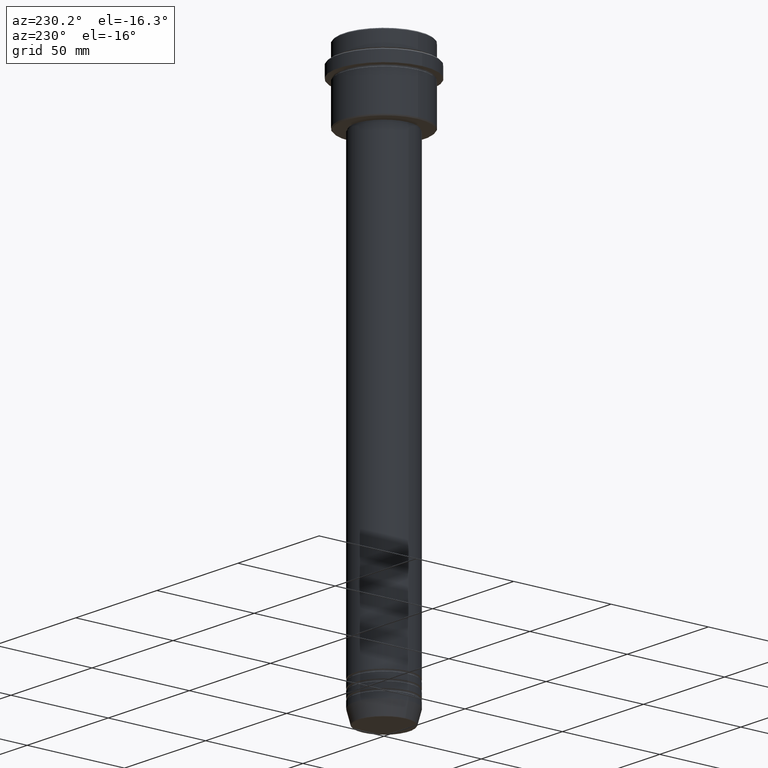
[diagram: clean part render]
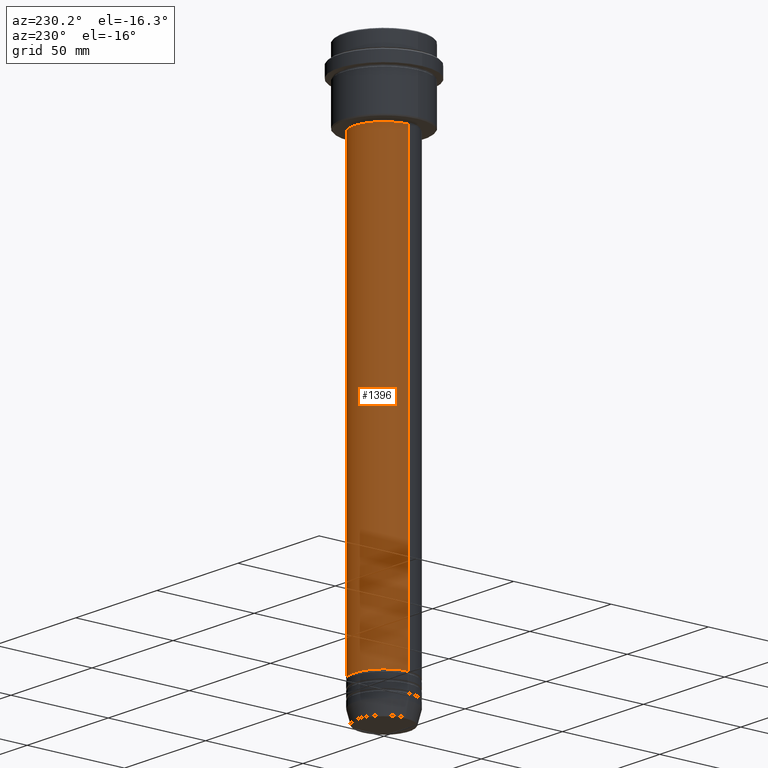
[diagram: same view with one face highlighted and labeled with its STEP entity id]
A machine part, auxiliary view. The second image highlights one B-rep face of the part: STEP entity #1396.
In plain terms, the highlighted cylindrical surface (partial cylindrical patch) has radius 15 mm, axis along (-0, -0, 1).
Its self-contained STEP definition (entity closure, byte-faithful):
#79 = AXIS2_PLACEMENT_3D ( 'NONE', #455, #342, #232 ) ;
#86 = VERTEX_POINT ( 'NONE', #430 ) ;
#97 = AXIS2_PLACEMENT_3D ( 'NONE', #731, #1404, #1165 ) ;
#114 = VECTOR ( 'NONE', #1054, 1000.000000000000000 ) ;
#196 = EDGE_CURVE ( 'NONE', #558, #386, #863, .T. ) ;
#212 = EDGE_CURVE ( 'NONE', #558, #86, #968, .T. ) ;
#232 = DIRECTION ( 'NONE',  ( 1.000000000000000000, 0.000000000000000000, 0.000000000000000000 ) ) ;
#256 = ORIENTED_EDGE ( 'NONE', *, *, #212, .F. ) ;
#280 = CIRCLE ( 'NONE', #79, 15.00000000000000000 ) ;
#342 = DIRECTION ( 'NONE',  ( -0.000000000000000000, -0.000000000000000000, 1.000000000000000000 ) ) ;
#372 = CARTESIAN_POINT ( 'NONE',  ( -15.00000000000000000, 1.836970198721029589E-15, -37.00000000000008527 ) ) ;
#386 = VERTEX_POINT ( 'NONE', #987 ) ;
#414 = CARTESIAN_POINT ( 'NONE',  ( -15.00000000000000000, 1.836970198721029589E-15, 0.000000000000000000 ) ) ;
#430 = CARTESIAN_POINT ( 'NONE',  ( 15.00000000000000000, 0.000000000000000000, -37.00000000000008527 ) ) ;
#455 = CARTESIAN_POINT ( 'NONE',  ( 0.000000000000000000, 0.000000000000000000, -37.00000000000008527 ) ) ;
#469 = VECTOR ( 'NONE', #861, 1000.000000000000000 ) ;
#509 = EDGE_CURVE ( 'NONE', #86, #913, #280, .T. ) ;
#511 = CARTESIAN_POINT ( 'NONE',  ( 15.00000000000000000, 0.000000000000000000, -261.9999999999998863 ) ) ;
#558 = VERTEX_POINT ( 'NONE', #511 ) ;
#577 = ORIENTED_EDGE ( 'NONE', *, *, #1150, .T. ) ;
#613 = LINE ( 'NONE', #414, #114 ) ;
#646 = CARTESIAN_POINT ( 'NONE',  ( 15.00000000000000000, 0.000000000000000000, 0.000000000000000000 ) ) ;
#675 = DIRECTION ( 'NONE',  ( 1.000000000000000000, 0.000000000000000000, 0.000000000000000000 ) ) ;
#704 = CARTESIAN_POINT ( 'NONE',  ( 0.000000000000000000, 0.000000000000000000, 0.000000000000000000 ) ) ;
#731 = CARTESIAN_POINT ( 'NONE',  ( 0.000000000000000000, 0.000000000000000000, -261.9999999999998863 ) ) ;
#775 = ORIENTED_EDGE ( 'NONE', *, *, #509, .F. ) ;
#810 = FACE_OUTER_BOUND ( 'NONE', #1198, .T. ) ;
#861 = DIRECTION ( 'NONE',  ( -0.000000000000000000, -0.000000000000000000, 1.000000000000000000 ) ) ;
#863 = CIRCLE ( 'NONE', #97, 15.00000000000000000 ) ;
#876 = AXIS2_PLACEMENT_3D ( 'NONE', #704, #1129, #675 ) ;
#913 = VERTEX_POINT ( 'NONE', #372 ) ;
#968 = LINE ( 'NONE', #646, #469 ) ;
#987 = CARTESIAN_POINT ( 'NONE',  ( -15.00000000000000000, 1.836970198721029589E-15, -261.9999999999998863 ) ) ;
#1054 = DIRECTION ( 'NONE',  ( -0.000000000000000000, -0.000000000000000000, 1.000000000000000000 ) ) ;
#1097 = ORIENTED_EDGE ( 'NONE', *, *, #196, .T. ) ;
#1129 = DIRECTION ( 'NONE',  ( -0.000000000000000000, -0.000000000000000000, 1.000000000000000000 ) ) ;
#1150 = EDGE_CURVE ( 'NONE', #386, #913, #613, .T. ) ;
#1165 = DIRECTION ( 'NONE',  ( 1.000000000000000000, 0.000000000000000000, 0.000000000000000000 ) ) ;
#1198 = EDGE_LOOP ( 'NONE', ( #1097, #577, #775, #256 ) ) ;
#1249 = CYLINDRICAL_SURFACE ( 'NONE', #876, 15.00000000000000000 ) ;
#1396 = ADVANCED_FACE ( 'NONE', ( #810 ), #1249, .T. ) ;
#1404 = DIRECTION ( 'NONE',  ( -0.000000000000000000, -0.000000000000000000, 1.000000000000000000 ) ) ;